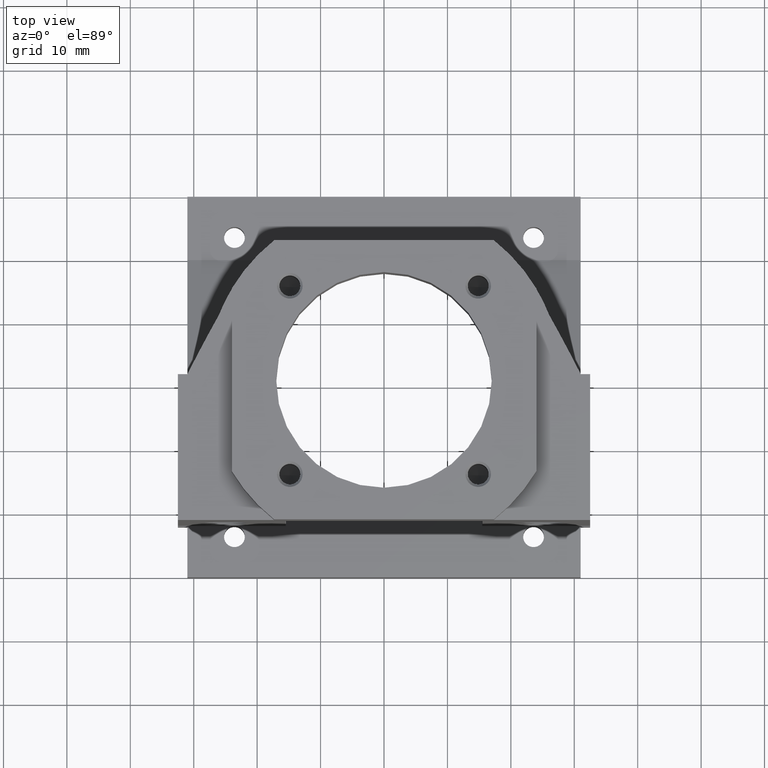
[diagram: clean part render]
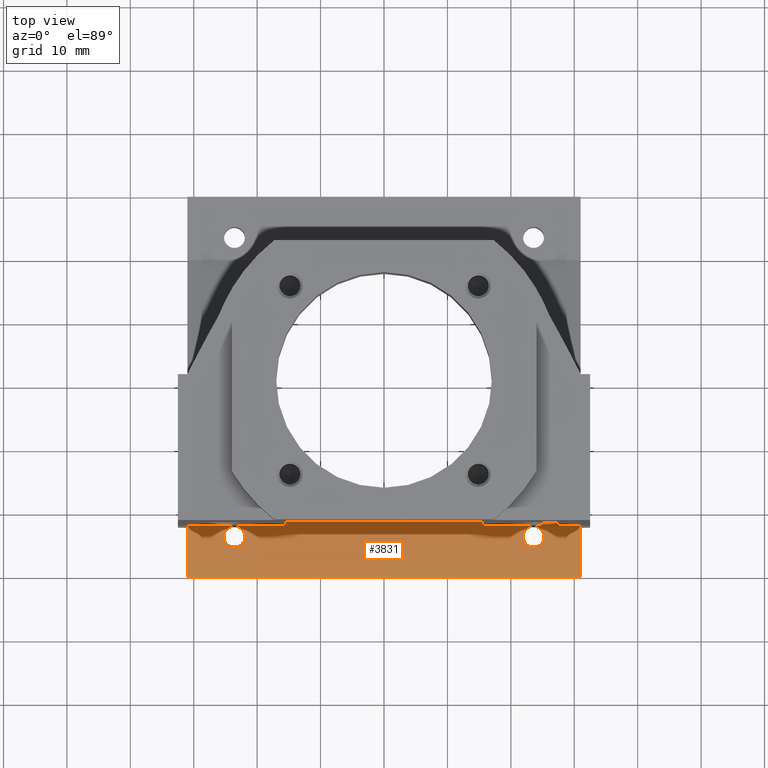
[diagram: same view with one face highlighted and labeled with its STEP entity id]
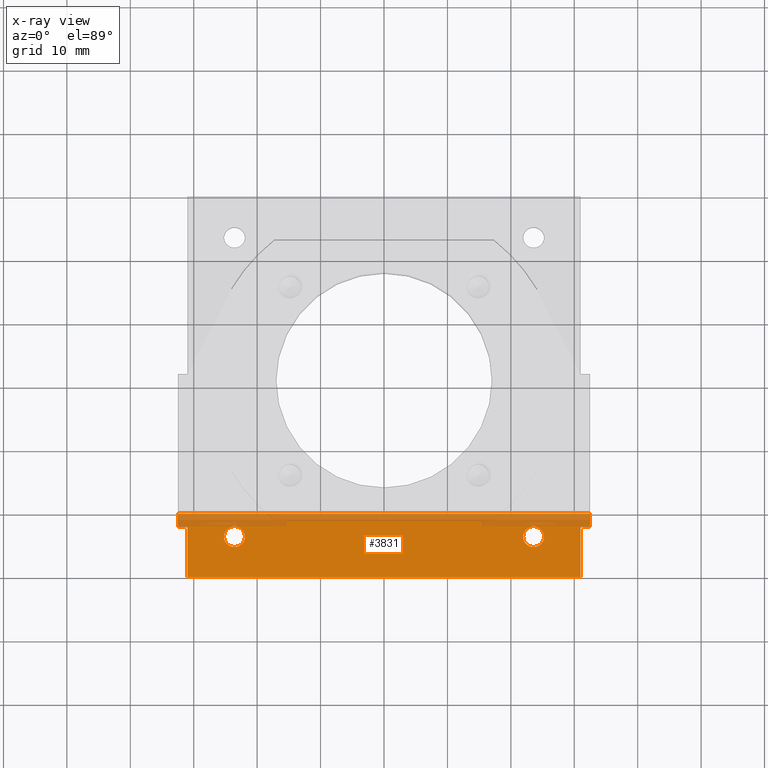
[diagram: x-ray of the same camera — body ghosted, the highlighted face saturated]
A machine part, top view. The second image highlights one B-rep face of the part: STEP entity #3831.
The next image is the same camera in x-ray: the body ghosted, the highlighted face saturated — about 16% of this face is hidden behind the body in this view.
In plain terms, the highlighted planar face has unit normal (0, 0, -1).
Its self-contained STEP definition (entity closure, byte-faithful):
#199 = EDGE_CURVE ( 'NONE', #766, #785, #3065, .T. ) ;
#202 = EDGE_CURVE ( 'NONE', #685, #789, #3049, .T. ) ;
#230 = EDGE_CURVE ( 'NONE', #726, #718, #3230, .T. ) ;
#234 = EDGE_CURVE ( 'NONE', #716, #828, #3233, .T. ) ;
#236 = EDGE_CURVE ( 'NONE', #670, #725, #3235, .T. ) ;
#299 = EDGE_CURVE ( 'NONE', #785, #766, #3087, .T. ) ;
#300 = EDGE_CURVE ( 'NONE', #789, #685, #2187, .T. ) ;
#307 = EDGE_CURVE ( 'NONE', #716, #707, #3319, .T. ) ;
#315 = EDGE_CURVE ( 'NONE', #726, #736, #3326, .T. ) ;
#326 = EDGE_CURVE ( 'NONE', #707, #718, #3337, .T. ) ;
#345 = EDGE_CURVE ( 'NONE', #670, #828, #3348, .T. ) ;
#483 = EDGE_CURVE ( 'NONE', #736, #725, #3483, .T. ) ;
#558 = VECTOR ( 'NONE', #2738, 1000.000000000000000 ) ;
#617 = AXIS2_PLACEMENT_3D ( 'NONE', #2317, #2315, #2314 ) ;
#670 = VERTEX_POINT ( 'NONE', #2667 ) ;
#685 = VERTEX_POINT ( 'NONE', #2650 ) ;
#707 = VERTEX_POINT ( 'NONE', #2628 ) ;
#716 = VERTEX_POINT ( 'NONE', #2619 ) ;
#718 = VERTEX_POINT ( 'NONE', #2617 ) ;
#725 = VERTEX_POINT ( 'NONE', #2607 ) ;
#726 = VERTEX_POINT ( 'NONE', #2606 ) ;
#736 = VERTEX_POINT ( 'NONE', #2592 ) ;
#766 = VERTEX_POINT ( 'NONE', #2559 ) ;
#785 = VERTEX_POINT ( 'NONE', #2534 ) ;
#789 = VERTEX_POINT ( 'NONE', #2530 ) ;
#828 = VERTEX_POINT ( 'NONE', #2484 ) ;
#972 = ORIENTED_EDGE ( 'NONE', *, *, #236, .T. ) ;
#973 = ORIENTED_EDGE ( 'NONE', *, *, #345, .F. ) ;
#974 = ORIENTED_EDGE ( 'NONE', *, *, #234, .T. ) ;
#975 = ORIENTED_EDGE ( 'NONE', *, *, #307, .F. ) ;
#976 = ORIENTED_EDGE ( 'NONE', *, *, #230, .T. ) ;
#977 = ORIENTED_EDGE ( 'NONE', *, *, #315, .F. ) ;
#978 = ORIENTED_EDGE ( 'NONE', *, *, #202, .T. ) ;
#979 = ORIENTED_EDGE ( 'NONE', *, *, #326, .F. ) ;
#980 = ORIENTED_EDGE ( 'NONE', *, *, #199, .T. ) ;
#981 = ORIENTED_EDGE ( 'NONE', *, *, #483, .F. ) ;
#982 = ORIENTED_EDGE ( 'NONE', *, *, #299, .T. ) ;
#983 = ORIENTED_EDGE ( 'NONE', *, *, #300, .T. ) ;
#1552 = DIRECTION ( 'NONE',  ( -0.0000000000000000000, 1.000000000000000000, -0.0000000000000000000 ) ) ;
#1553 = CARTESIAN_POINT ( 'NONE',  ( 32.49999999999999300, -20.00000000000001100, 3.999999999999999100 ) ) ;
#1585 = DIRECTION ( 'NONE',  ( 1.000000000000000000, 1.156482317317871200E-016, -0.0000000000000000000 ) ) ;
#1586 = CARTESIAN_POINT ( 'NONE',  ( -32.50002499999999400, -30.00000000000000700, 3.999999999999999100 ) ) ;
#1589 = DIRECTION ( 'NONE',  ( -5.782411586589357400E-017, 1.000000000000000000, 0.0000000000000000000 ) ) ;
#1592 = CARTESIAN_POINT ( 'NONE',  ( -31.00000000000001100, 29.99999999999998600, 3.999999999999999100 ) ) ;
#1631 = CARTESIAN_POINT ( 'NONE',  ( -32.49999999999999300, -22.00000000000001400, 3.999999999999996400 ) ) ;
#1639 = DIRECTION ( 'NONE',  ( -1.000000000000000000, -1.156482317317871500E-016, 0.0000000000000000000 ) ) ;
#1640 = CARTESIAN_POINT ( 'NONE',  ( 32.49999999999999300, -22.00000000000001400, 3.999999999999996400 ) ) ;
#1642 = DIRECTION ( 'NONE',  ( -1.508455196501570900E-016, -1.000000000000000000, 0.0000000000000000000 ) ) ;
#1709 = DIRECTION ( 'NONE',  ( -1.000000000000000000, 0.0000000000000000000, 0.0000000000000000000 ) ) ;
#1735 = DIRECTION ( 'NONE',  ( 0.0000000000000000000, -0.0000000000000000000, -1.000000000000000000 ) ) ;
#1736 = CARTESIAN_POINT ( 'NONE',  ( -23.58201115257132200, -23.58201115257140000, 3.999999999999999100 ) ) ;
#1740 = DIRECTION ( 'NONE',  ( -1.000000000000000000, 0.0000000000000000000, 0.0000000000000000000 ) ) ;
#1741 = DIRECTION ( 'NONE',  ( 0.0000000000000000000, -0.0000000000000000000, -1.000000000000000000 ) ) ;
#1743 = CARTESIAN_POINT ( 'NONE',  ( 23.58201115257147900, -23.58201115257124400, 3.999999999999999100 ) ) ;
#1912 = DIRECTION ( 'NONE',  ( -1.000000000000000000, 0.0000000000000000000, 0.0000000000000000000 ) ) ;
#1916 = DIRECTION ( 'NONE',  ( 0.0000000000000000000, -0.0000000000000000000, -1.000000000000000000 ) ) ;
#1921 = CARTESIAN_POINT ( 'NONE',  ( -23.58201115257132200, -23.58201115257140000, 3.999999999999999100 ) ) ;
#1950 = DIRECTION ( 'NONE',  ( -1.000000000000000000, 0.0000000000000000000, 0.0000000000000000000 ) ) ;
#1952 = DIRECTION ( 'NONE',  ( 0.0000000000000000000, -0.0000000000000000000, -1.000000000000000000 ) ) ;
#1956 = CARTESIAN_POINT ( 'NONE',  ( 23.58201115257147900, -23.58201115257124400, 3.999999999999999100 ) ) ;
#2105 = EDGE_LOOP ( 'NONE', ( #981, #977, #976, #979, #975, #974, #973, #972 ) ) ;
#2106 = EDGE_LOOP ( 'NONE', ( #982, #980 ) ) ;
#2107 = EDGE_LOOP ( 'NONE', ( #983, #978 ) ) ;
#2187 = CIRCLE ( 'NONE', #3610, 1.649999999999998600 ) ;
#2314 = DIRECTION ( 'NONE',  ( -1.000000000000000000, 0.0000000000000000000, -0.0000000000000000000 ) ) ;
#2315 = DIRECTION ( 'NONE',  ( 0.0000000000000000000, 0.0000000000000000000, -1.000000000000000000 ) ) ;
#2317 = CARTESIAN_POINT ( 'NONE',  ( -32.50002499999999400, -20.00000000000001800, 3.999999999999999100 ) ) ;
#2318 = PLANE ( 'NONE',  #617 ) ;
#2484 = CARTESIAN_POINT ( 'NONE',  ( 32.49999999999999300, -20.00000000000001100, 3.999999999999999100 ) ) ;
#2530 = CARTESIAN_POINT ( 'NONE',  ( -25.23201115257132100, -23.58201115257140000, 3.999999999999999100 ) ) ;
#2534 = CARTESIAN_POINT ( 'NONE',  ( 21.93201115257148000, -23.58201115257124400, 3.999999999999999100 ) ) ;
#2559 = CARTESIAN_POINT ( 'NONE',  ( 25.23201115257147700, -23.58201115257124400, 3.999999999999999100 ) ) ;
#2592 = CARTESIAN_POINT ( 'NONE',  ( -30.99999999999999300, -22.00000000000001800, 3.999999999999996400 ) ) ;
#2606 = CARTESIAN_POINT ( 'NONE',  ( -31.00000000000000700, -30.00000000000000700, 3.999999999999999100 ) ) ;
#2607 = CARTESIAN_POINT ( 'NONE',  ( -32.49999999999999300, -22.00000000000001400, 3.999999999999996400 ) ) ;
#2617 = CARTESIAN_POINT ( 'NONE',  ( 30.99999999999999300, -30.00000000000000000, 3.999999999999999100 ) ) ;
#2619 = CARTESIAN_POINT ( 'NONE',  ( 32.49999999999999300, -22.00000000000001400, 3.999999999999999100 ) ) ;
#2628 = CARTESIAN_POINT ( 'NONE',  ( 30.99999999999999600, -22.00000000000001400, 3.999999999999996400 ) ) ;
#2650 = CARTESIAN_POINT ( 'NONE',  ( -21.93201115257132400, -23.58201115257140000, 3.999999999999999100 ) ) ;
#2667 = CARTESIAN_POINT ( 'NONE',  ( -32.49999999999999300, -20.00000000000001100, 3.999999999999996400 ) ) ;
#2738 = DIRECTION ( 'NONE',  ( -1.000000000000000000, -1.156482317317871500E-016, 0.0000000000000000000 ) ) ;
#2740 = CARTESIAN_POINT ( 'NONE',  ( 32.49999999999999300, -22.00000000000001400, 3.999999999999996400 ) ) ;
#2823 = DIRECTION ( 'NONE',  ( 1.000000000000000000, 1.156482317317871200E-016, -0.0000000000000000000 ) ) ;
#2825 = CARTESIAN_POINT ( 'NONE',  ( -32.50002499999999400, -20.00000000000001800, 3.999999999999999100 ) ) ;
#3026 = DIRECTION ( 'NONE',  ( 1.156482317317871500E-016, -1.000000000000000000, 0.0000000000000000000 ) ) ;
#3029 = CARTESIAN_POINT ( 'NONE',  ( 30.99999999999998900, 29.99999999999998600, 3.999999999999999100 ) ) ;
#3049 = CIRCLE ( 'NONE', #3064, 1.649999999999998600 ) ;
#3061 = AXIS2_PLACEMENT_3D ( 'NONE', #1956, #1952, #1950 ) ;
#3064 = AXIS2_PLACEMENT_3D ( 'NONE', #1921, #1916, #1912 ) ;
#3065 = CIRCLE ( 'NONE', #3061, 1.649999999999998600 ) ;
#3087 = CIRCLE ( 'NONE', #3597, 1.649999999999998600 ) ;
#3230 = LINE ( 'NONE', #1586, #3598 ) ;
#3233 = LINE ( 'NONE', #1553, #3605 ) ;
#3235 = LINE ( 'NONE', #1631, #3600 ) ;
#3319 = LINE ( 'NONE', #1640, #3618 ) ;
#3326 = LINE ( 'NONE', #1592, #3626 ) ;
#3337 = LINE ( 'NONE', #3029, #3637 ) ;
#3348 = LINE ( 'NONE', #2825, #3666 ) ;
#3483 = LINE ( 'NONE', #2740, #558 ) ;
#3535 = FACE_BOUND ( 'NONE', #2106, .T. ) ;
#3537 = FACE_BOUND ( 'NONE', #2107, .T. ) ;
#3538 = FACE_OUTER_BOUND ( 'NONE', #2105, .T. ) ;
#3597 = AXIS2_PLACEMENT_3D ( 'NONE', #1743, #1741, #1740 ) ;
#3598 = VECTOR ( 'NONE', #1585, 1000.000000000000000 ) ;
#3600 = VECTOR ( 'NONE', #1642, 1000.000000000000000 ) ;
#3605 = VECTOR ( 'NONE', #1552, 1000.000000000000000 ) ;
#3610 = AXIS2_PLACEMENT_3D ( 'NONE', #1736, #1735, #1709 ) ;
#3618 = VECTOR ( 'NONE', #1639, 1000.000000000000000 ) ;
#3626 = VECTOR ( 'NONE', #1589, 1000.000000000000000 ) ;
#3637 = VECTOR ( 'NONE', #3026, 1000.000000000000000 ) ;
#3666 = VECTOR ( 'NONE', #2823, 1000.000000000000000 ) ;
#3831 = ADVANCED_FACE ( 'NONE', ( #3535, #3537, #3538 ), #2318, .F. ) ;